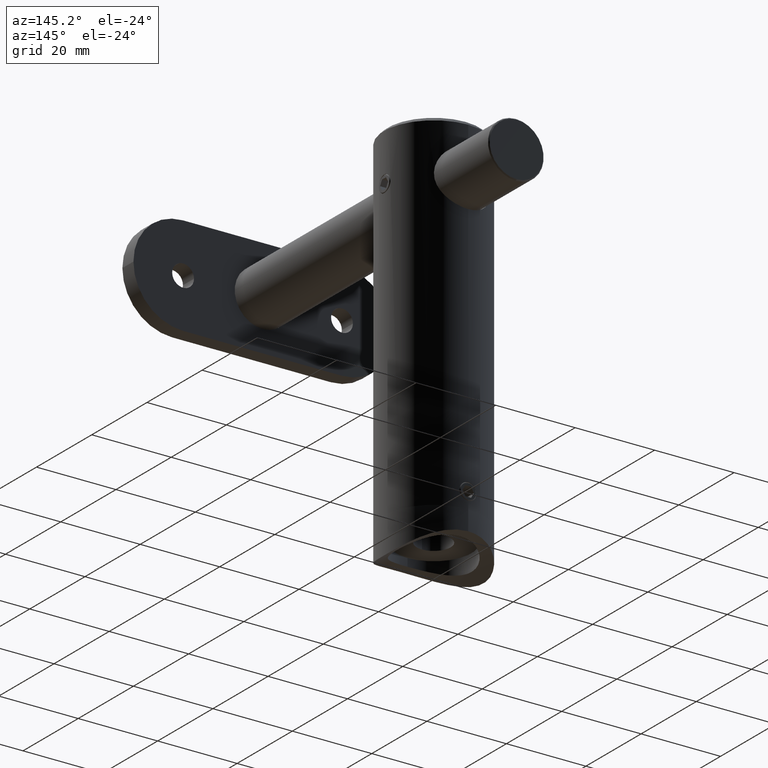
[diagram: clean part render]
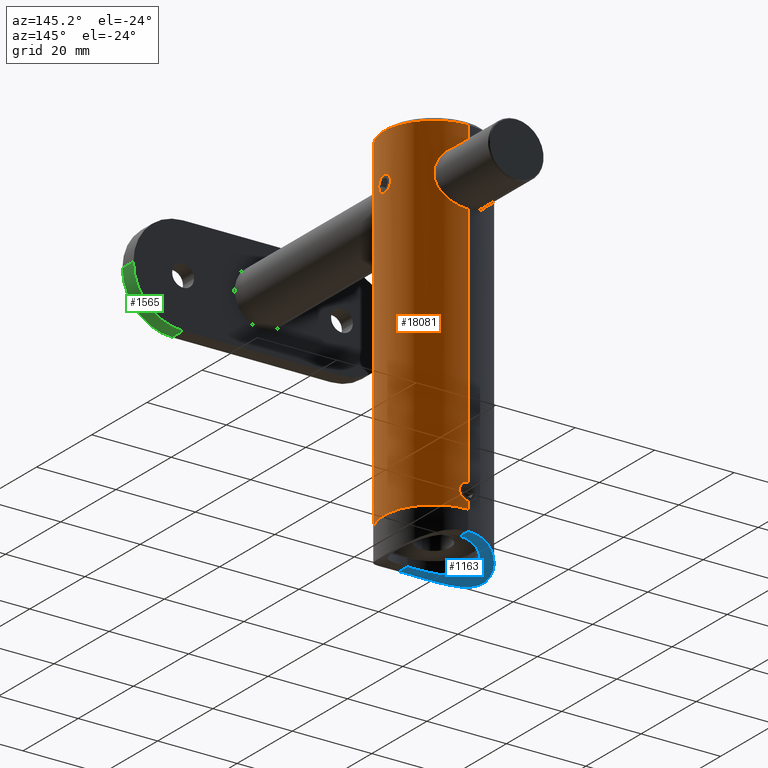
[diagram: same view with three faces highlighted in distinct colors, each labeled with its STEP entity id]
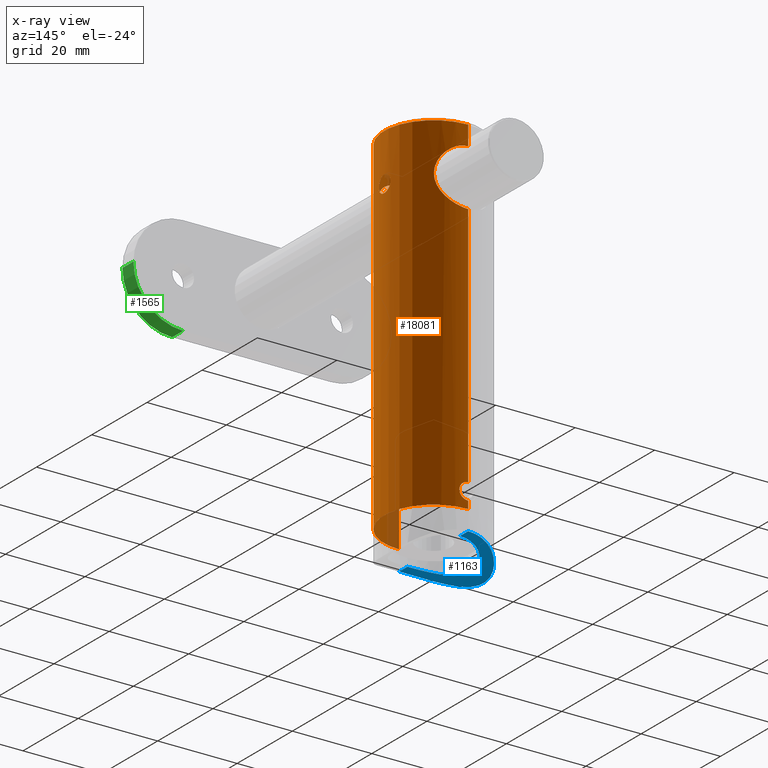
[diagram: x-ray of the same camera — body ghosted, the three highlighted faces saturated]
A machine part, auxiliary view with three faces highlighted in distinct colors.
The next image is the same camera in x-ray (body ghosted, the three faces saturated) — at least one of them is partly hidden behind the body in this view.
Their STEP definitions:

[orange] entity #18081 — the highlighted cylindrical surface (partial cylindrical patch) has radius 12.5 mm, axis along (0, 0, -1).
#29 = CARTESIAN_POINT ( 'NONE',  ( 6.139503581357959483, -10.88909560909869789, 78.57343385222416998 ) ) ;
#96 = VERTEX_POINT ( 'NONE', #14581 ) ;
#168 = CARTESIAN_POINT ( 'NONE',  ( 0.000000000000000000, 12.49999999999999467, 87.00000000000000000 ) ) ;
#338 = VERTEX_POINT ( 'NONE', #168 ) ;
#429 = CARTESIAN_POINT ( 'NONE',  ( 12.40001885819545357, -1.580836478937788447, 76.38913205608098167 ) ) ;
#484 = CARTESIAN_POINT ( 'NONE',  ( 0.9553685758214884860, -12.46569958972208880, 82.03946455910856628 ) ) ;
#496 = CARTESIAN_POINT ( 'NONE',  ( 12.48874150837816721, -0.5474908082749004867, 72.96791234692787498 ) ) ;
#502 = CARTESIAN_POINT ( 'NONE',  ( 1.479114197289397135E-28, 12.49999999999999645, 67.90000000000000568 ) ) ;
#620 = CARTESIAN_POINT ( 'NONE',  ( 6.863499158220037977, 10.44773442666879859, 76.87726417523570888 ) ) ;
#673 = EDGE_CURVE ( 'NONE', #7620, #16041, #17970, .T. ) ;
#680 = CARTESIAN_POINT ( 'NONE',  ( 3.592029824636716384, 11.97955674781279534, 81.14166018535317448 ) ) ;
#752 = CARTESIAN_POINT ( 'NONE',  ( 6.148078400945676592, 10.88734605281069179, 78.58038588945871084 ) ) ;
#797 = CARTESIAN_POINT ( 'NONE',  ( 0.1371844661457304326, 12.50000000000000178, 1.900000000000005684 ) ) ;
#802 = DIRECTION ( 'NONE',  ( -0.000000000000000000, 1.098045870766271941E-16, -1.000000000000000000 ) ) ;
#857 = CARTESIAN_POINT ( 'NONE',  ( 2.086330489974699276, 12.32468933921310850, 3.724121591978968304 ) ) ;
#880 = VECTOR ( 'NONE', #11729, 1000.000000000000000 ) ;
#991 = CARTESIAN_POINT ( 'NONE',  ( 1.992840048957692511, 12.34023651949286027, 3.323561581767618289 ) ) ;
#1012 = CARTESIAN_POINT ( 'NONE',  ( 12.34023651949286204, 1.992840048957679633, 75.67643841823236528 ) ) ;
#1048 = ORIENTED_EDGE ( 'NONE', *, *, #6955, .T. ) ;
#1201 = CARTESIAN_POINT ( 'NONE',  ( 5.765905370694647480, -11.09166530797233463, 70.85077256676534319 ) ) ;
#1268 = CARTESIAN_POINT ( 'NONE',  ( 1.874312031601152340, -12.36740688548128020, 68.13568800573899864 ) ) ;
#1474 = CARTESIAN_POINT ( 'NONE',  ( 2.549971958430633290, -12.23912789366318066, 81.63039500168848406 ) ) ;
#1804 = CARTESIAN_POINT ( 'NONE',  ( 12.46598422166855080, -0.9302022205380996445, 76.88770713018109859 ) ) ;
#1924 = ORIENTED_EDGE ( 'NONE', *, *, #673, .F. ) ;
#2002 = CARTESIAN_POINT ( 'NONE',  ( 5.339918604441929340, 11.30314907400740232, 79.68477827955356929 ) ) ;
#2058 = CARTESIAN_POINT ( 'NONE',  ( 1.641484044854722990, 12.39391654726003900, 68.08836762162168554 ) ) ;
#2119 = VECTOR ( 'NONE', #11003, 1000.000000000000000 ) ;
#2123 = CARTESIAN_POINT ( 'NONE',  ( 7.100136108486190700, 10.28776298659891708, 74.52130825598263186 ) ) ;
#2192 = CARTESIAN_POINT ( 'NONE',  ( 4.346314444032335800, 11.72684879340800812, 69.36723664936097578 ) ) ;
#2246 = CARTESIAN_POINT ( 'NONE',  ( 0.000000000000000000, -6.829089316830601455E-15, 87.00000000000000000 ) ) ;
#2248 = CARTESIAN_POINT ( 'NONE',  ( 6.454712516760546137, 10.70503448327140994, 72.03349485711549960 ) ) ;
#2286 = CARTESIAN_POINT ( 'NONE',  ( 0.2765420468446744273, 12.49766874747620449, 1.913752199355624128 ) ) ;
#2309 = CARTESIAN_POINT ( 'NONE',  ( 12.48229535687992886, 0.6771302859603445246, 76.99258700857591009 ) ) ;
#2384 = CARTESIAN_POINT ( 'NONE',  ( 12.48225234873649114, 0.6779383900031811239, 73.00767976529198222 ) ) ;
#2436 = ORIENTED_EDGE ( 'NONE', *, *, #15417, .F. ) ;
#2505 = CARTESIAN_POINT ( 'NONE',  ( 12.50000000000000355, 0.1390172217368248475, 72.90000000000000568 ) ) ;
#2695 = CARTESIAN_POINT ( 'NONE',  ( 7.039363743819930797, -10.32948239257339651, 74.04422229401671984 ) ) ;
#2792 = CARTESIAN_POINT ( 'NONE',  ( 0.000000000000000000, 12.50000000000000000, 1.372557338457839692E-15 ) ) ;
#2960 = CARTESIAN_POINT ( 'NONE',  ( 4.868944799639090881, -11.51408151635098776, 80.17252493070223807 ) ) ;
#3027 = ORIENTED_EDGE ( 'NONE', *, *, #14289, .F. ) ;
#3166 = CARTESIAN_POINT ( 'NONE',  ( 12.32472383621019851, -2.086126021674024056, 75.27716492244429958 ) ) ;
#3169 = CARTESIAN_POINT ( 'NONE',  ( 0.000000000000000000, 2.723909758835963716E-15, 0.000000000000000000 ) ) ;
#3212 = DIRECTION ( 'NONE',  ( 0.000000000000000000, 1.000000000000000000, 0.000000000000000000 ) ) ;
#3288 = CARTESIAN_POINT ( 'NONE',  ( 12.50000000000000178, -4.742557830427097865E-15, 72.90000000000000568 ) ) ;
#3301 = EDGE_CURVE ( 'NONE', #3643, #16957, #12492, .T. ) ;
#3360 = CARTESIAN_POINT ( 'NONE',  ( 12.38825472392713323, -1.669446844424482990, 76.28128412325601460 ) ) ;
#3404 = EDGE_LOOP ( 'NONE', ( #1048, #8566, #18418, #6139, #3027, #1924, #2436, #8655, #6202, #10585 ) ) ;
#3421 = CARTESIAN_POINT ( 'NONE',  ( 12.35697594623955098, -1.886269248244670571, 75.93326108111170925 ) ) ;
#3489 = CARTESIAN_POINT ( 'NONE',  ( 6.364631587517307842, 10.76036465851575663, 78.18015725607449440 ) ) ;
#3558 = CARTESIAN_POINT ( 'NONE',  ( 7.051980222211308380, 10.32144769786893868, 74.05050001367736456 ) ) ;
#3643 = VERTEX_POINT ( 'NONE', #15594 ) ;
#3657 = CARTESIAN_POINT ( 'NONE',  ( 0.5462078688293401374, 12.48878923632492821, 1.967621503411471906 ) ) ;
#3678 = CARTESIAN_POINT ( 'NONE',  ( 4.356324323330966308, 11.72326304938611230, 80.62539833997442429 ) ) ;
#3726 = B_SPLINE_CURVE_WITH_KNOTS ( 'NONE', 3,
 ( #9610, #10984, #6425, #18339, #5108, #13883, #680, #3678, #6672, #15428, #2002, #12409, #16852, #752, #3489, #9537, #620, #12525, #14009, #2123, #3558, #17042, #4926, #8163, #15483, #2248, #6617, #7986, #5048, #8098, #7916, #11105, #2192, #13826, #15296, #9481, #10924, #14076, #2058, #18275, #9425, #502 ),
 .UNSPECIFIED., .F., .F.,
 ( 4, 2, 2, 2, 2, 2, 2, 2, 2, 2, 2, 2, 2, 2, 2, 2, 2, 2, 2, 2, 4 ),
 ( 4.194532707431236113E-19, 0.001419307301426396073, 0.002838614602852791713, 0.004257921904279187569, 0.005677229205705584293, 0.006386882856418795232, 0.007096536507132008773, 0.008515843808558432385, 0.009935151109984857731, 0.01135445841141128134, 0.01277376571283770669, 0.01348341936355092197, 0.01419307301426413377, 0.01490272666497734731, 0.01561238031569055912, 0.01703168761711695151, 0.01845099491854334736, 0.01987030221996973975, 0.02057995587068293594, 0.02128960952139613561, 0.02270891682282252799 ),
 .UNSPECIFIED. ) ;
#3811 = CARTESIAN_POINT ( 'NONE',  ( 12.36503985059749766, 1.834949845525997825, 73.94276080644216620 ) ) ;
#3918 = CARTESIAN_POINT ( 'NONE',  ( 1.387157736859883972, 12.42318353256700902, 2.417308881639297802 ) ) ;
#4009 = CARTESIAN_POINT ( 'NONE',  ( 12.33211929933789897, 2.044525624529518470, 74.44799400489414154 ) ) ;
#4024 = VECTOR ( 'NONE', #16370, 1000.000000000000000 ) ;
#4073 = CARTESIAN_POINT ( 'NONE',  ( 6.146595381488634047, -10.88816703618160275, 71.41721095202191805 ) ) ;
#4193 = CARTESIAN_POINT ( 'NONE',  ( 4.707102817139631412, -11.58512768093195433, 69.66537265374721244 ) ) ;
#4238 = VERTEX_POINT ( 'NONE', #15934 ) ;
#4258 = CARTESIAN_POINT ( 'NONE',  ( 6.853982002503374638, -10.45369377733144844, 76.86763025503725544 ) ) ;
#4324 = CARTESIAN_POINT ( 'NONE',  ( 4.357488413051599174, -11.72285358696204582, 69.37543835206957965 ) ) ;
#4382 = CARTESIAN_POINT ( 'NONE',  ( 1.650620416519913647, -12.39271462522873435, 81.90947881661519148 ) ) ;
#4453 = CARTESIAN_POINT ( 'NONE',  ( 2.327268730588589740, -12.28355408712936381, 81.71186112651896849 ) ) ;
#4784 = CARTESIAN_POINT ( 'NONE',  ( 3.597349250370588170, -11.97780161950915279, 81.13814261268855432 ) ) ;
#4851 = CARTESIAN_POINT ( 'NONE',  ( 12.36656387944244351, -1.823189292361678371, 73.94888903341586683 ) ) ;
#4908 = CARTESIAN_POINT ( 'NONE',  ( 4.163804789402312245, -11.78780696279486406, 80.75540257205885553 ) ) ;
#4920 = CARTESIAN_POINT ( 'NONE',  ( 12.38807301078725409, -1.670798748957228019, 73.72043562086983570 ) ) ;
#4926 = CARTESIAN_POINT ( 'NONE',  ( 6.852873825890775983, 10.45442333798881940, 73.12823189057861839 ) ) ;
#4954 = LINE ( 'NONE', #8995, #4024 ) ;
#5016 = VERTEX_POINT ( 'NONE', #16694 ) ;
#5037 = AXIS2_PLACEMENT_3D ( 'NONE', #2246, #10919, #12405 ) ;
#5048 = CARTESIAN_POINT ( 'NONE',  ( 6.016811922509472943, 10.95760019053421708, 71.22370518382082594 ) ) ;
#5108 = CARTESIAN_POINT ( 'NONE',  ( 2.330508779459668389, 12.28868335539653955, 81.72272208563961726 ) ) ;
#5130 = CARTESIAN_POINT ( 'NONE',  ( 1.530808498934191719E-15, -12.50000000000000178, 24.80688495222045375 ) ) ;
#5223 = B_SPLINE_CURVE_WITH_KNOTS ( 'NONE', 3,
 ( #19193, #17669, #11611, #1268, #10134, #16133, #12983, #4324, #4193, #19059, #7066, #16192, #1201, #4073, #17416, #15938, #8554, #18932, #2695, #13115, #17600, #14571, #5706, #13174, #4258, #8749, #16059, #5765, #7849, #29, #14768, #7457, #13742, #2960, #18196, #12323, #4908, #4784, #10385, #1474, #4453, #5892, #4382, #15281, #484, #11878, #9336, #13367 ),
 .UNSPECIFIED., .F., .F.,
 ( 4, 2, 2, 2, 2, 2, 2, 2, 2, 2, 2, 2, 2, 2, 2, 2, 2, 2, 2, 2, 2, 2, 2, 4 ),
 ( 0.02270891682282252105, 0.02412525192292018159, 0.02554158702301784212, 0.02695792212311549918, 0.02837425722321315971, 0.02908242477326198824, 0.02979059232331081677, 0.03120692742340847731, 0.03262326252350613437, 0.03333143007355496290, 0.03403959762360379143, 0.03545593272370141380, 0.03616410027375022151, 0.03687226782379903617, 0.03758043537384784388, 0.03828860292389665854, 0.03970493802399423233, 0.04041310557404302617, 0.04112127312409182001, 0.04253760822418942156, 0.04324577577423822233, 0.04395394332428701617, 0.04466211087433581001, 0.04537027842438460384 ),
 .UNSPECIFIED. ) ;
#5241 = CARTESIAN_POINT ( 'NONE',  ( 12.46584558724483216, 0.9321576868460880183, 73.11319783095291314 ) ) ;
#5283 = CARTESIAN_POINT ( 'NONE',  ( 1.834949845526015144, 12.36503985059750121, 5.057239193557812484 ) ) ;
#5305 = CARTESIAN_POINT ( 'NONE',  ( 12.33366651879309472, 2.032587617967170246, 75.54540937349550234 ) ) ;
#5329 = CARTESIAN_POINT ( 'NONE',  ( 1.530808498934021719E-15, -12.50000000000000711, 67.90000000000000568 ) ) ;
#5351 = B_SPLINE_CURVE_WITH_KNOTS ( 'NONE', 3,
 ( #17098, #2505, #6994, #11495, #2384, #5241, #17294, #15620, #15685, #18793, #3811, #4009, #14198, #9943, #17157, #5305, #1012, #9994, #6806, #17350, #18735, #12925, #5505, #5371, #11243, #2309, #8302, #18861, #12733, #17228 ),
 .UNSPECIFIED., .F., .F.,
 ( 4, 2, 2, 2, 2, 2, 2, 2, 2, 2, 2, 2, 2, 2, 4 ),
 ( 5.694991699657585544E-19, 0.0004110766416146334587, 0.0008221532832292662669, 0.001233229924843899346, 0.001644306566458532100, 0.002466459849687796958, 0.003288613132917062466, 0.003699689774531715169, 0.004110766416146369173, 0.004521843057761021877, 0.004932919699375675447, 0.005343996340990329018, 0.005755072982604982589, 0.006166149624219635292, 0.006577226265834288862 ),
 .UNSPECIFIED. ) ;
#5371 = CARTESIAN_POINT ( 'NONE',  ( 12.45599735624381488, 1.054112223713804752, 76.82141008166449581 ) ) ;
#5416 = EDGE_CURVE ( 'NONE', #338, #6898, #4954, .T. ) ;
#5422 = CARTESIAN_POINT ( 'NONE',  ( -9.798441303750187635E-23, 12.50000000000000355, 1.900000000000005684 ) ) ;
#5505 = CARTESIAN_POINT ( 'NONE',  ( 12.43467607152728505, 1.281348397245117399, 76.66938118794041657 ) ) ;
#5706 = CARTESIAN_POINT ( 'NONE',  ( 7.052734923715451743, -10.32092856185195728, 75.94404489671642011 ) ) ;
#5765 = CARTESIAN_POINT ( 'NONE',  ( 6.457309689604065817, -10.70346527864367303, 77.96083301754553929 ) ) ;
#5892 = CARTESIAN_POINT ( 'NONE',  ( 1.878213508060257553, -12.36018587133493973, 81.85110017035160013 ) ) ;
#6139 = ORIENTED_EDGE ( 'NONE', *, *, #18887, .T. ) ;
#6202 = ORIENTED_EDGE ( 'NONE', *, *, #12658, .F. ) ;
#6221 = CARTESIAN_POINT ( 'NONE',  ( 12.34024839959371711, -1.992762697854680631, 74.32340279117751436 ) ) ;
#6417 = CARTESIAN_POINT ( 'NONE',  ( 12.45612933409647027, -1.052645575539829403, 76.82233367382804090 ) ) ;
#6425 = CARTESIAN_POINT ( 'NONE',  ( 0.9512168273055813250, 12.47240342699862836, 82.05172804908777096 ) ) ;
#6489 = FACE_BOUND ( 'NONE', #11413, .T. ) ;
#6498 = VECTOR ( 'NONE', #13344, 1000.000000000000000 ) ;
#6534 = AXIS2_PLACEMENT_3D ( 'NONE', #3169, #14986, #12034 ) ;
#6613 = CARTESIAN_POINT ( 'NONE',  ( 1.310074275435993587E-16, 12.49999999999999467, 82.09999999999999432 ) ) ;
#6617 = CARTESIAN_POINT ( 'NONE',  ( 6.355184909898127010, 10.76464359171547613, 71.82596901323130112 ) ) ;
#6650 = CARTESIAN_POINT ( 'NONE',  ( 2.099895493303238769, 12.32235525086057137, 4.275280821264919595 ) ) ;
#6672 = CARTESIAN_POINT ( 'NONE',  ( 4.708029709747258096, 11.58475042720363923, 80.33381269667307834 ) ) ;
#6806 = CARTESIAN_POINT ( 'NONE',  ( 12.36678065982762575, 1.821708534087441045, 76.05359325661177650 ) ) ;
#6857 = CARTESIAN_POINT ( 'NONE',  ( 1.052690134217554307, 12.45612162279729951, 5.822267772036405553 ) ) ;
#6898 = VERTEX_POINT ( 'NONE', #6613 ) ;
#6913 = CARTESIAN_POINT ( 'NONE',  ( 0.5444173614143056339, 12.48886249823464745, 6.032826302615787561 ) ) ;
#6955 = EDGE_CURVE ( 'NONE', #338, #4238, #11212, .T. ) ;
#6994 = CARTESIAN_POINT ( 'NONE',  ( 12.49768326621186532, 0.2756623671610598514, 72.91366750028979027 ) ) ;
#7066 = CARTESIAN_POINT ( 'NONE',  ( 5.339170464550233142, -11.30350596078847580, 70.31435362947013346 ) ) ;
#7457 = CARTESIAN_POINT ( 'NONE',  ( 5.637531711305975080, -11.16027666235575388, 79.34016184945231487 ) ) ;
#7620 = VERTEX_POINT ( 'NONE', #11523 ) ;
#7731 = CARTESIAN_POINT ( 'NONE',  ( 12.35677335900393281, -1.887587319264240504, 74.06946194860161370 ) ) ;
#7849 = CARTESIAN_POINT ( 'NONE',  ( 6.357972462635661515, -10.76299649604915842, 78.16845701976458827 ) ) ;
#7909 = CARTESIAN_POINT ( 'NONE',  ( 12.43448438498407427, -1.292831960822527160, 73.32272558053072942 ) ) ;
#7916 = CARTESIAN_POINT ( 'NONE',  ( 5.345048310374299838, 11.30501070537478547, 70.30460859623607917 ) ) ;
#7938 = ORIENTED_EDGE ( 'NONE', *, *, #3301, .F. ) ;
#7986 = CARTESIAN_POINT ( 'NONE',  ( 6.136548808116673470, 10.89076193942644899, 71.42150636865642355 ) ) ;
#8098 = CARTESIAN_POINT ( 'NONE',  ( 5.633085906007541332, 11.16254692090159928, 70.65396086375710638 ) ) ;
#8163 = CARTESIAN_POINT ( 'NONE',  ( 6.713868405384194382, 10.54423150536102938, 72.67849907081439653 ) ) ;
#8302 = CARTESIAN_POINT ( 'NONE',  ( 12.48878923632492288, 0.5462078688293278139, 77.03237849658850678 ) ) ;
#8339 = CARTESIAN_POINT ( 'NONE',  ( 1.281348397245135606, 12.43467607152728860, 2.330618812059590095 ) ) ;
#8409 = CARTESIAN_POINT ( 'NONE',  ( 1.280796030087371973, 12.43473698676050887, 5.669843669627169014 ) ) ;
#8554 = CARTESIAN_POINT ( 'NONE',  ( 6.862816372559793265, -10.44818337300497468, 73.12045813888653356 ) ) ;
#8566 = ORIENTED_EDGE ( 'NONE', *, *, #15723, .T. ) ;
#8655 = ORIENTED_EDGE ( 'NONE', *, *, #10678, .F. ) ;
#8749 = CARTESIAN_POINT ( 'NONE',  ( 6.715641276056541820, -10.54309940824727754, 77.31630617827099172 ) ) ;
#8802 = LINE ( 'NONE', #19103, #880 ) ;
#8995 = CARTESIAN_POINT ( 'NONE',  ( 0.000000000000000000, 12.50000000000000178, 24.80688495222045375 ) ) ;
#9084 = CARTESIAN_POINT ( 'NONE',  ( 0.000000000000000000, 0.000000000000000000, 24.80688495222045375 ) ) ;
#9167 = CARTESIAN_POINT ( 'NONE',  ( 12.32235175367555691, -2.099916014006711684, 75.14000245874221662 ) ) ;
#9275 = CARTESIAN_POINT ( 'NONE',  ( 12.50000000000000178, -8.927675263775713921E-15, 77.09999999999999432 ) ) ;
#9336 = CARTESIAN_POINT ( 'NONE',  ( 0.2397798003476037387, -12.50000000000000888, 82.09999999999998010 ) ) ;
#9348 = CARTESIAN_POINT ( 'NONE',  ( 12.36678782163336621, -1.821665953450996689, 76.05369584079291201 ) ) ;
#9425 = CARTESIAN_POINT ( 'NONE',  ( 0.4809610958689473081, 12.50000000000000000, 67.90000000000000568 ) ) ;
#9481 = CARTESIAN_POINT ( 'NONE',  ( 2.542285523396216274, 12.24072011514204128, 68.36667086906037127 ) ) ;
#9537 = CARTESIAN_POINT ( 'NONE',  ( 6.722015453373491489, 10.54080125387373634, 77.33161824979872279 ) ) ;
#9610 = CARTESIAN_POINT ( 'NONE',  ( 1.310074275435993587E-16, 12.49999999999999467, 82.09999999999999432 ) ) ;
#9661 = CARTESIAN_POINT ( 'NONE',  ( 0.000000000000000000, 12.50000000000000178, 24.80688495222045375 ) ) ;
#9713 = ORIENTED_EDGE ( 'NONE', *, *, #12686, .F. ) ;
#9715 = CARTESIAN_POINT ( 'NONE',  ( 1.887385030941209907, 12.35680486868406369, 3.069001536322709889 ) ) ;
#9784 = CARTESIAN_POINT ( 'NONE',  ( 0.2756623671610645698, 12.49768326621186709, 6.086332499710207067 ) ) ;
#9856 = CARTESIAN_POINT ( 'NONE',  ( 2.100052025693301072, 12.32232857426644124, 3.863557181503245452 ) ) ;
#9943 = CARTESIAN_POINT ( 'NONE',  ( 12.32232857426643946, 2.100052025693282420, 75.13644281849676076 ) ) ;
#9994 = CARTESIAN_POINT ( 'NONE',  ( 12.35680486868406192, 1.887385030941196362, 75.93099846367726968 ) ) ;
#10134 = CARTESIAN_POINT ( 'NONE',  ( 2.330455522349840436, -12.28868556496929365, 68.27727600612421099 ) ) ;
#10305 = CARTESIAN_POINT ( 'NONE',  ( 1.530808498934191324E-15, -12.49999999999999289, -1.372557338457839692E-15 ) ) ;
#10385 = CARTESIAN_POINT ( 'NONE',  ( 3.195008394635590054, -12.09282248704223406, 81.35766473062263060 ) ) ;
#10585 = ORIENTED_EDGE ( 'NONE', *, *, #5416, .F. ) ;
#10590 = DIRECTION ( 'NONE',  ( -0.000000000000000000, 1.098045870766271941E-16, -1.000000000000000000 ) ) ;
#10678 = EDGE_CURVE ( 'NONE', #18437, #96, #17848, .T. ) ;
#10726 = CARTESIAN_POINT ( 'NONE',  ( 12.45762628977003850, -1.059040836926603113, 73.16609221518450568 ) ) ;
#10797 = CARTESIAN_POINT ( 'NONE',  ( 12.43465773738692803, -1.281603546142748185, 76.66926782661904838 ) ) ;
#10916 = CARTESIAN_POINT ( 'NONE',  ( 12.50000000000000533, -0.1389824923851714633, 72.90000000000000568 ) ) ;
#10919 = DIRECTION ( 'NONE',  ( -0.000000000000000000, 1.098045870766268366E-16, -1.000000000000000000 ) ) ;
#10924 = CARTESIAN_POINT ( 'NONE',  ( 2.319323625872139250, 12.28506725716602510, 68.28537096905358794 ) ) ;
#10984 = CARTESIAN_POINT ( 'NONE',  ( 0.4805659640073335348, 12.49999999999999822, 82.09999999999998010 ) ) ;
#11003 = DIRECTION ( 'NONE',  ( -0.000000000000000000, 1.098045870766271941E-16, -1.000000000000000000 ) ) ;
#11105 = CARTESIAN_POINT ( 'NONE',  ( 4.703273353215213781, 11.58671775153815275, 69.66188594729271699 ) ) ;
#11145 = CARTESIAN_POINT ( 'NONE',  ( 1.821708534087455478, 12.36678065982762753, 2.946406743388207961 ) ) ;
#11212 = CIRCLE ( 'NONE', #5037, 12.50000000000000178 ) ;
#11243 = CARTESIAN_POINT ( 'NONE',  ( 12.46591754872634539, 0.9311833701841214506, 76.88727473940672041 ) ) ;
#11287 = CARTESIAN_POINT ( 'NONE',  ( 1.054112223713821850, 12.45599735624381665, 2.178589918335490427 ) ) ;
#11345 = CARTESIAN_POINT ( 'NONE',  ( 1.669773426702777730, 12.38820982123450243, 2.719165335797718797 ) ) ;
#11406 = CARTESIAN_POINT ( 'NONE',  ( 0.9311833701841346622, 12.46591754872634716, 2.112725260593256937 ) ) ;
#11413 = EDGE_LOOP ( 'NONE', ( #9713, #7938 ) ) ;
#11495 = CARTESIAN_POINT ( 'NONE',  ( 12.48886249823464389, 0.5444173614142989726, 72.96717369738421155 ) ) ;
#11523 = CARTESIAN_POINT ( 'NONE',  ( -9.798441303750187635E-23, 12.50000000000000355, 1.900000000000005684 ) ) ;
#11611 = CARTESIAN_POINT ( 'NONE',  ( 0.9511822130778535556, -12.47241159761731844, 67.94825715557603019 ) ) ;
#11729 = DIRECTION ( 'NONE',  ( -0.000000000000000000, 1.098045870766271941E-16, -1.000000000000000000 ) ) ;
#11878 = CARTESIAN_POINT ( 'NONE',  ( 0.4811991486314973754, -12.49299174562366765, 82.08768211575332430 ) ) ;
#12034 = DIRECTION ( 'NONE',  ( 0.000000000000000000, 1.000000000000000000, 1.098045870766272064E-16 ) ) ;
#12157 = CARTESIAN_POINT ( 'NONE',  ( 12.49041604070637135, -0.5510555997337337475, 77.04479711651897844 ) ) ;
#12180 = VERTEX_POINT ( 'NONE', #5329 ) ;
#12219 = CARTESIAN_POINT ( 'NONE',  ( 12.48211517639016854, -0.6802983101495032603, 73.00854562603635145 ) ) ;
#12272 = CARTESIAN_POINT ( 'NONE',  ( 12.42317581721323272, -1.387160506701222706, 76.58256676668652574 ) ) ;
#12323 = CARTESIAN_POINT ( 'NONE',  ( 4.346392963122590380, -11.72154789661121477, 80.61883026206071179 ) ) ;
#12405 = DIRECTION ( 'NONE',  ( 0.000000000000000000, -1.000000000000000000, 0.000000000000000000 ) ) ;
#12409 = CARTESIAN_POINT ( 'NONE',  ( 5.629205280336356587, 11.16189758074910543, 79.33288889108355590 ) ) ;
#12492 = B_SPLINE_CURVE_WITH_KNOTS ( 'NONE', 3,
 ( #9275, #15170, #12157, #1804, #6417, #10797, #12272, #429, #3360, #9348, #3421, #13753, #15099, #3166, #9167, #13822, #15039, #16530, #6221, #7731, #4851, #4920, #18065, #7909, #10726, #12219, #496, #18270, #10916, #3288 ),
 .UNSPECIFIED., .F., .F.,
 ( 4, 2, 2, 2, 2, 2, 2, 2, 2, 2, 2, 2, 2, 2, 4 ),
 ( 0.006577226265834288862, 0.007399174158320342629, 0.007810148104563369512, 0.008221122050806396395, 0.008632095997049421543, 0.009043069943292448426, 0.009454043889535475309, 0.009865017835778502192, 0.01027599178202152908, 0.01068696572826455596, 0.01109793967450758284, 0.01150891362075060972, 0.01233086151323666349, 0.01274183545947968343, 0.01315280940572270164 ),
 .UNSPECIFIED. ) ;
#12525 = CARTESIAN_POINT ( 'NONE',  ( 7.051303418075907992, 10.32191336193627151, 75.95439068768588697 ) ) ;
#12644 = CARTESIAN_POINT ( 'NONE',  ( 1.582696428115959231, 12.39978901785039511, 2.612848321380438321 ) ) ;
#12658 = EDGE_CURVE ( 'NONE', #6898, #18437, #3726, .T. ) ;
#12686 = EDGE_CURVE ( 'NONE', #16957, #3643, #5351, .T. ) ;
#12733 = CARTESIAN_POINT ( 'NONE',  ( 12.49999999999999645, 0.1371844661457215231, 77.09999999999996589 ) ) ;
#12925 = CARTESIAN_POINT ( 'NONE',  ( 12.42318353256701258, 1.387157736859872204, 76.58269111836068532 ) ) ;
#12947 = EDGE_CURVE ( 'NONE', #12180, #5016, #5223, .T. ) ;
#12983 = CARTESIAN_POINT ( 'NONE',  ( 3.591928364928691053, -11.97960984808972817, 68.85822097251374885 ) ) ;
#13115 = CARTESIAN_POINT ( 'NONE',  ( 7.087426699821463671, -10.29656404782430634, 74.51571112368854699 ) ) ;
#13145 = AXIS2_PLACEMENT_3D ( 'NONE', #9084, #10590, #3212 ) ;
#13174 = CARTESIAN_POINT ( 'NONE',  ( 6.912668111617618294, -10.41480574227799494, 76.63725143042471188 ) ) ;
#13344 = DIRECTION ( 'NONE',  ( -0.000000000000000000, 1.098045870766271941E-16, -1.000000000000000000 ) ) ;
#13367 = CARTESIAN_POINT ( 'NONE',  ( 1.290313625304569330E-16, -12.50000000000000888, 82.09999999999999432 ) ) ;
#13524 = LINE ( 'NONE', #5130, #2119 ) ;
#13576 = VERTEX_POINT ( 'NONE', #10305 ) ;
#13742 = CARTESIAN_POINT ( 'NONE',  ( 5.350137245759823301, -11.30260226496381648, 79.68962492468294556 ) ) ;
#13753 = CARTESIAN_POINT ( 'NONE',  ( 12.34036526571288661, -1.992047017919829077, 75.67877581040282564 ) ) ;
#13822 = CARTESIAN_POINT ( 'NONE',  ( 12.32232325748718438, -2.100083223394554999, 74.86252851512971063 ) ) ;
#13826 = CARTESIAN_POINT ( 'NONE',  ( 3.589032839019617338, 11.98032867455219908, 68.85692947369598471 ) ) ;
#13883 = CARTESIAN_POINT ( 'NONE',  ( 3.187496164584713298, 12.09474588327907973, 81.36129952231796381 ) ) ;
#14009 = CARTESIAN_POINT ( 'NONE',  ( 7.099863319915301396, 10.28795124725935572, 75.48272081303905168 ) ) ;
#14054 = CARTESIAN_POINT ( 'NONE',  ( 0.6779383900031874521, 12.48225234873649292, 5.992320234708012450 ) ) ;
#14076 = CARTESIAN_POINT ( 'NONE',  ( 1.869096526884920673, 12.36157828789706592, 68.14638903365943179 ) ) ;
#14178 = CARTESIAN_POINT ( 'NONE',  ( 6.970107993329720685E-17, 12.50000000000000355, 6.099999999999998757 ) ) ;
#14198 = CARTESIAN_POINT ( 'NONE',  ( 12.32235525086057493, 2.099895493303221894, 74.72471917873511416 ) ) ;
#14289 = EDGE_CURVE ( 'NONE', #16041, #13576, #14670, .T. ) ;
#14327 = CARTESIAN_POINT ( 'NONE',  ( 12.50000000000000178, -4.742557830427097865E-15, 72.90000000000000568 ) ) ;
#14571 = CARTESIAN_POINT ( 'NONE',  ( 7.100327846217662220, -10.28763066194223441, 75.47389198161975798 ) ) ;
#14581 = CARTESIAN_POINT ( 'NONE',  ( 6.970107993329720685E-17, 12.50000000000000355, 6.099999999999998757 ) ) ;
#14593 = CYLINDRICAL_SURFACE ( 'NONE', #13145, 12.50000000000000178 ) ;
#14670 = CIRCLE ( 'NONE', #6534, 12.49999999999999645 ) ;
#14768 = CARTESIAN_POINT ( 'NONE',  ( 6.019886174600847184, -10.95590503741819610, 78.77136084374127734 ) ) ;
#14986 = DIRECTION ( 'NONE',  ( -0.000000000000000000, 1.098045870766271941E-16, -1.000000000000000000 ) ) ;
#15039 = CARTESIAN_POINT ( 'NONE',  ( 12.32465138950227512, -2.086551808546025288, 74.72598678402806627 ) ) ;
#15099 = CARTESIAN_POINT ( 'NONE',  ( 12.33368337160504602, -2.032484663200843755, 75.54566314369984070 ) ) ;
#15170 = CARTESIAN_POINT ( 'NONE',  ( 12.50000000000000178, -0.2743003893079722366, 77.10000000000000853 ) ) ;
#15281 = CARTESIAN_POINT ( 'NONE',  ( 1.189197617727922207, -12.44547036346078528, 82.00366006475731240 ) ) ;
#15296 = CARTESIAN_POINT ( 'NONE',  ( 3.186329035902468743, 12.09508519001899174, 68.63805128578243853 ) ) ;
#15417 = EDGE_CURVE ( 'NONE', #96, #7620, #17781, .T. ) ;
#15428 = CARTESIAN_POINT ( 'NONE',  ( 5.187679897919521110, 11.37402628047061448, 79.85275722496861306 ) ) ;
#15483 = CARTESIAN_POINT ( 'NONE',  ( 6.634052515645166181, 10.59483006856256182, 72.45976110248518864 ) ) ;
#15594 = CARTESIAN_POINT ( 'NONE',  ( 12.50000000000000178, -8.927675263775713921E-15, 77.09999999999999432 ) ) ;
#15620 = CARTESIAN_POINT ( 'NONE',  ( 12.43473698676051242, 1.280796030087359538, 73.33015633037285852 ) ) ;
#15685 = CARTESIAN_POINT ( 'NONE',  ( 12.42301355294200249, 1.388600539506594567, 73.41870817831934914 ) ) ;
#15723 = EDGE_CURVE ( 'NONE', #4238, #5016, #13524, .T. ) ;
#15729 = CARTESIAN_POINT ( 'NONE',  ( 1.479114197289397135E-28, 12.49999999999999645, 67.90000000000000568 ) ) ;
#15934 = CARTESIAN_POINT ( 'NONE',  ( 1.530808498934192507E-15, -12.50000000000000888, 87.00000000000000000 ) ) ;
#15938 = CARTESIAN_POINT ( 'NONE',  ( 6.721338987096790341, -10.54124068422390081, 72.66633231102332502 ) ) ;
#16041 = VERTEX_POINT ( 'NONE', #2792 ) ;
#16059 = CARTESIAN_POINT ( 'NONE',  ( 6.636142668883756812, -10.59351820108908981, 77.53475660832806682 ) ) ;
#16117 = VECTOR ( 'NONE', #802, 1000.000000000000000 ) ;
#16133 = CARTESIAN_POINT ( 'NONE',  ( 3.187016512190910422, -12.09486426576826013, 68.63847765149670010 ) ) ;
#16192 = CARTESIAN_POINT ( 'NONE',  ( 5.628902018887845138, -11.16205403663978579, 70.66670042335572077 ) ) ;
#16229 = CARTESIAN_POINT ( 'NONE',  ( 0.000000000000000000, 12.50000000000000178, 24.80688495222045375 ) ) ;
#16370 = DIRECTION ( 'NONE',  ( -0.000000000000000000, 1.098045870766271941E-16, -1.000000000000000000 ) ) ;
#16530 = CARTESIAN_POINT ( 'NONE',  ( 12.33355821179406497, -2.033241785620694575, 74.45712843739981679 ) ) ;
#16694 = CARTESIAN_POINT ( 'NONE',  ( 1.290313625304569330E-16, -12.50000000000000888, 82.09999999999999432 ) ) ;
#16852 = CARTESIAN_POINT ( 'NONE',  ( 5.766588826831745784, 11.09131400361184028, 79.14830821994482335 ) ) ;
#16957 = VERTEX_POINT ( 'NONE', #14327 ) ;
#17042 = CARTESIAN_POINT ( 'NONE',  ( 6.911509236011332824, 10.41557569167954611, 73.35788736678887290 ) ) ;
#17098 = CARTESIAN_POINT ( 'NONE',  ( 12.50000000000000178, -4.742557830427097865E-15, 72.90000000000000568 ) ) ;
#17157 = CARTESIAN_POINT ( 'NONE',  ( 12.32468933921311027, 2.086330489974682401, 75.27587840802104324 ) ) ;
#17203 = CARTESIAN_POINT ( 'NONE',  ( 2.044525624529536234, 12.33211929933789897, 4.552005995105875336 ) ) ;
#17228 = CARTESIAN_POINT ( 'NONE',  ( 12.50000000000000178, -8.927675263775713921E-15, 77.09999999999999432 ) ) ;
#17273 = CARTESIAN_POINT ( 'NONE',  ( 0.9321576868460960119, 12.46584558724483216, 5.886802169047096633 ) ) ;
#17294 = CARTESIAN_POINT ( 'NONE',  ( 12.45612162279729951, 1.052690134217543205, 73.17773222796360244 ) ) ;
#17350 = CARTESIAN_POINT ( 'NONE',  ( 12.38820982123449710, 1.669773426702765073, 76.28083466420225989 ) ) ;
#17416 = CARTESIAN_POINT ( 'NONE',  ( 6.363243337331817351, -10.76119357562657264, 71.81699247692637300 ) ) ;
#17600 = CARTESIAN_POINT ( 'NONE',  ( 7.099833554373472744, -10.28797178943788104, 74.75572396004345421 ) ) ;
#17669 = CARTESIAN_POINT ( 'NONE',  ( 0.4799539051028673953, -12.50000000000000711, 67.90000000000001990 ) ) ;
#17781 = B_SPLINE_CURVE_WITH_KNOTS ( 'NONE', 3,
 ( #14178, #18512, #9784, #6913, #14054, #17273, #6857, #8409, #18659, #18581, #5283, #17203, #6650, #9856, #857, #18773, #991, #9715, #11145, #11345, #12644, #3918, #8339, #11287, #11406, #18719, #3657, #2286, #797, #5422 ),
 .UNSPECIFIED., .F., .F.,
 ( 4, 2, 2, 2, 2, 2, 2, 2, 2, 2, 2, 2, 2, 2, 4 ),
 ( 2.806614994676047085E-20, 0.0004110766416146458728, 0.0008221532832292916372, 0.001233229924843937944, 0.001644306566458583925, 0.002466459849687873719, 0.003288613132917163513, 0.003699689774531809711, 0.004110766416146454175, 0.004521843057761099072, 0.004932919699375744836, 0.005343996340990389733, 0.005755072982605034630, 0.006166149624219679527, 0.006577226265834324424 ),
 .UNSPECIFIED. ) ;
#17848 = LINE ( 'NONE', #16229, #6498 ) ;
#17970 = LINE ( 'NONE', #9661, #16117 ) ;
#18059 = FACE_OUTER_BOUND ( 'NONE', #3404, .T. ) ;
#18065 = CARTESIAN_POINT ( 'NONE',  ( 12.39980942031196776, -1.582460249035305688, 73.61274171492630103 ) ) ;
#18081 = ADVANCED_FACE ( 'NONE', ( #6489, #18059 ), #14593, .T. ) ;
#18196 = CARTESIAN_POINT ( 'NONE',  ( 4.699254457469034030, -11.58459427111669449, 80.32723125532280051 ) ) ;
#18270 = CARTESIAN_POINT ( 'NONE',  ( 12.49768328457756361, -0.2762664775608930090, 72.91366271943154231 ) ) ;
#18275 = CARTESIAN_POINT ( 'NONE',  ( 0.9511355239451539934, 12.47236506100287556, 67.94834280267892268 ) ) ;
#18339 = CARTESIAN_POINT ( 'NONE',  ( 1.874052461373487244, 12.36744064349517558, 81.86437246242219601 ) ) ;
#18418 = ORIENTED_EDGE ( 'NONE', *, *, #12947, .F. ) ;
#18437 = VERTEX_POINT ( 'NONE', #15729 ) ;
#18512 = CARTESIAN_POINT ( 'NONE',  ( 0.1390172217368305929, 12.50000000000000355, 6.099999999999996092 ) ) ;
#18581 = CARTESIAN_POINT ( 'NONE',  ( 1.678584206747425256, 12.38831158150507861, 5.291176283621599197 ) ) ;
#18659 = CARTESIAN_POINT ( 'NONE',  ( 1.388600539506599674, 12.42301355294200249, 5.581291821680668619 ) ) ;
#18719 = CARTESIAN_POINT ( 'NONE',  ( 0.6771302859603564039, 12.48229535687993241, 2.007412991424085025 ) ) ;
#18735 = CARTESIAN_POINT ( 'NONE',  ( 12.39978901785039334, 1.582696428115945908, 76.38715167861954569 ) ) ;
#18773 = CARTESIAN_POINT ( 'NONE',  ( 2.032587617967188898, 12.33366651879309295, 3.454590626504497219 ) ) ;
#18793 = CARTESIAN_POINT ( 'NONE',  ( 12.38831158150507861, 1.678584206747418373, 73.70882371637840436 ) ) ;
#18861 = CARTESIAN_POINT ( 'NONE',  ( 12.49766874747620093, 0.2765420468446641022, 77.08624780064435811 ) ) ;
#18887 = EDGE_CURVE ( 'NONE', #12180, #13576, #8802, .T. ) ;
#18932 = CARTESIAN_POINT ( 'NONE',  ( 7.003725121456045422, -10.35379304955139546, 73.81127548781324776 ) ) ;
#19059 = CARTESIAN_POINT ( 'NONE',  ( 5.186797260141184474, -11.37442896416549054, 70.14630031359378393 ) ) ;
#19103 = CARTESIAN_POINT ( 'NONE',  ( 1.530808498934191719E-15, -12.50000000000000178, 24.80688495222045375 ) ) ;
#19193 = CARTESIAN_POINT ( 'NONE',  ( 1.530808498934021719E-15, -12.50000000000000711, 67.90000000000000568 ) ) ;

[blue] entity #1163 — the highlighted cylindrical surface (partial cylindrical patch) has radius 21.2 mm, axis along (0, 1, 0).
#17 = CARTESIAN_POINT ( 'NONE',  ( -9.926636468171466277, 7.639131853456515131, -2.460587857928711042 ) ) ;
#90 = CARTESIAN_POINT ( 'NONE',  ( -10.80857782698150871, 6.291928922265645596, -2.960889035143795756 ) ) ;
#772 = CARTESIAN_POINT ( 'NONE',  ( -0.6275294939466145028, -9.500000000000001776, 8.597384414631142525E-16 ) ) ;
#888 = CARTESIAN_POINT ( 'NONE',  ( -7.545282423623953960, -5.804909621740315551, -1.384726415098398444 ) ) ;
#961 = CARTESIAN_POINT ( 'NONE',  ( -5.805942213954453202, 7.525670169832348932, -0.8090122025169094178 ) ) ;
#1029 = CARTESIAN_POINT ( 'NONE',  ( -9.421843170412577351, -1.256671943239963785, -2.208683526330691205 ) ) ;
#1041 = CARTESIAN_POINT ( 'NONE',  ( -8.569357823279590392, -9.109024265841890511, -1.806659297143438980 ) ) ;
#1056 = EDGE_CURVE ( 'NONE', #5175, #13983, #9453, .T. ) ;
#1163 = ADVANCED_FACE ( 'NONE', ( #15246 ), #4315, .F. ) ;
#1521 = CARTESIAN_POINT ( 'NONE',  ( -12.50092163456458394, 0.8325225752573188753, -4.077880983653366265 ) ) ;
#1907 = ORIENTED_EDGE ( 'NONE', *, *, #4212, .T. ) ;
#2333 = CARTESIAN_POINT ( 'NONE',  ( -7.144392992319526847, 6.269113372122063765, -1.239018852474774501 ) ) ;
#2404 = CARTESIAN_POINT ( 'NONE',  ( -2.484891172450712116, 9.174654780029433354, -0.1439469597393304989 ) ) ;
#2470 = CARTESIAN_POINT ( 'NONE',  ( -6.939045779169092043, 6.495616438853671681, -1.166491256657042230 ) ) ;
#2519 = CARTESIAN_POINT ( 'NONE',  ( -3.947781125793090595, -8.646421355206925341, -0.3687998517959273359 ) ) ;
#2635 = VERTEX_POINT ( 'NONE', #12540 ) ;
#2641 = CARTESIAN_POINT ( 'NONE',  ( -12.16283172011047320, -2.913318855141282526, -3.835786719495810626 ) ) ;
#3007 = CARTESIAN_POINT ( 'NONE',  ( -11.36768113948518710, 5.214514510065643371, -3.304441698743988631 ) ) ;
#3141 = CARTESIAN_POINT ( 'NONE',  ( -12.16984790407604500, 2.883996753870301966, -3.840709158031511805 ) ) ;
#3734 = EDGE_LOOP ( 'NONE', ( #16934, #8372, #9600, #1907 ) ) ;
#3764 = CARTESIAN_POINT ( 'NONE',  ( 1.163408702497735518E-15, -9.500000000000001776, 5.232710601427350400E-16 ) ) ;
#3832 = CARTESIAN_POINT ( 'NONE',  ( 1.770460806215789106E-16, 9.500000000000001776, 9.112057225737407952E-16 ) ) ;
#3894 = CARTESIAN_POINT ( 'NONE',  ( -8.526553804341489240, 4.234270384419533961, -1.788500992911558285 ) ) ;
#3907 = CARTESIAN_POINT ( 'NONE',  ( -5.615852831644746246, -11.19741679516262423, -0.7426697937745319056 ) ) ;
#3960 = CARTESIAN_POINT ( 'NONE',  ( -7.148975235186329158, -6.286250973352113469, -1.236519540645801163 ) ) ;
#4043 = CARTESIAN_POINT ( 'NONE',  ( -9.131153934576975217, -8.545773481795482240, -2.064755425040014636 ) ) ;
#4157 = CARTESIAN_POINT ( 'NONE',  ( -0.8474616539393305947, -12.50000000000000355, -0.000000000000000000 ) ) ;
#4212 = EDGE_CURVE ( 'NONE', #2635, #13983, #7876, .T. ) ;
#4315 = CYLINDRICAL_SURFACE ( 'NONE', #18916, 21.19999999999999929 ) ;
#4510 = CARTESIAN_POINT ( 'NONE',  ( -3.314268895872201970, 12.05973822206781776, -0.2568123239795907509 ) ) ;
#4768 = CARTESIAN_POINT ( 'NONE',  ( -0.8493063021244290356, 12.47821017736088223, -0.01286860730927284584 ) ) ;
#4808 = CARTESIAN_POINT ( 'NONE',  ( -11.81299108572395085, -4.107946293886024058, -3.595584469514719217 ) ) ;
#5175 = VERTEX_POINT ( 'NONE', #16890 ) ;
#5257 = CARTESIAN_POINT ( 'NONE',  ( -9.500231082921484216, -0.3076637705127349132, -2.247807265663634091 ) ) ;
#5266 = VECTOR ( 'NONE', #8623, 1000.000000000000000 ) ;
#5390 = CARTESIAN_POINT ( 'NONE',  ( -9.251550618719285524, 2.181098476497070227, -2.125054315301133645 ) ) ;
#5404 = CARTESIAN_POINT ( 'NONE',  ( -7.335528771759535438, -10.12938846727852571, -1.306364138595595970 ) ) ;
#5459 = CARTESIAN_POINT ( 'NONE',  ( -8.992179249281038622, -3.080281073122243640, -2.001277538550943369 ) ) ;
#5472 = CARTESIAN_POINT ( 'NONE',  ( -3.299544761782136071, -12.06386656912337862, -0.2544362983334328976 ) ) ;
#5531 = CARTESIAN_POINT ( 'NONE',  ( -9.398677270982499721, -8.250758313400194055, -2.195094919896831698 ) ) ;
#6687 = CARTESIAN_POINT ( 'NONE',  ( -2.181203834842527556, 9.251494329312301090, -0.1102612648994177463 ) ) ;
#6753 = CARTESIAN_POINT ( 'NONE',  ( -1.252164291796421969, -9.438442895683170519, -0.02781063336081027182 ) ) ;
#6786 = CARTESIAN_POINT ( 'NONE',  ( 0.000000000000000000, 12.50000000000000000, -5.261240927112904875E-16 ) ) ;
#6946 = CARTESIAN_POINT ( 'NONE',  ( -3.086437162363791398, 8.990154621274323077, -0.2236809850733390004 ) ) ;
#6959 = CARTESIAN_POINT ( 'NONE',  ( -4.096177303198109243, -11.81715717646936348, -0.3955541790620944465 ) ) ;
#7532 = CARTESIAN_POINT ( 'NONE',  ( -12.32914928014637646, -2.100947460388592702, -3.953479877655620367 ) ) ;
#7617 = CARTESIAN_POINT ( 'NONE',  ( -11.67210911516328764, -4.491739155361245572, -3.501495300727554216 ) ) ;
#7702 = CARTESIAN_POINT ( 'NONE',  ( -8.277917003856288147, 9.374850157636908321, -1.680064173656778292 ) ) ;
#7770 = CARTESIAN_POINT ( 'NONE',  ( -0.4242796211472562584, 12.49999999999999467, -5.563124168022411105E-16 ) ) ;
#7876 = B_SPLINE_CURVE_WITH_KNOTS ( 'NONE', 3,
 ( #3832, #17312, #8318, #6687, #2404, #6946, #12809, #11446, #11263, #12941, #961, #14217, #15700, #2470, #2333, #17173, #8454, #14149, #3894, #9893, #14284, #15640, #5390, #12687, #18697, #5257, #17059, #1029, #11378, #8186, #15759, #5459, #9828, #17249, #8379, #888, #3960, #18752, #18812, #14345, #8254, #9955, #2519, #18549, #9692, #6753, #772, #3764 ),
 .UNSPECIFIED., .F., .F.,
 ( 4, 2, 2, 2, 2, 2, 2, 2, 2, 2, 2, 2, 2, 2, 2, 2, 2, 2, 2, 2, 2, 2, 2, 4 ),
 ( 2.347299112868954936E-19, 0.001881730389045195660, 0.002822595583567794140, 0.003763460778090392620, 0.005645191167135589147, 0.006586056361658188495, 0.007526921556180787842, 0.008467786750703388057, 0.009408651945225986538, 0.01129038233427118870, 0.01223124752879379065, 0.01317211272331639087, 0.01505384311236159303, 0.01599470830688419151, 0.01693557350140679346, 0.01787643869592939541, 0.01881730389045199736, 0.02069903427949719432, 0.02258076466854239128, 0.02446249505758758477, 0.02540336025211018325, 0.02634422544663278173, 0.02822595583567798216, 0.03010768622472317912 ),
 .UNSPECIFIED. ) ;
#7995 = CARTESIAN_POINT ( 'NONE',  ( -12.05928981790097154, -3.315947863389198336, -3.763379523277602168 ) ) ;
#8186 = CARTESIAN_POINT ( 'NONE',  ( -9.251571903857151113, -2.180889900667828840, -2.125065211895238004 ) ) ;
#8254 = CARTESIAN_POINT ( 'NONE',  ( -4.772371283661581032, -8.220122416439462398, -0.5422556817602156576 ) ) ;
#8318 = CARTESIAN_POINT ( 'NONE',  ( -1.261473221818074864, 9.436624146820390635, -0.02861351620139697058 ) ) ;
#8372 = ORIENTED_EDGE ( 'NONE', *, *, #18602, .T. ) ;
#8379 = CARTESIAN_POINT ( 'NONE',  ( -8.230780964947197020, -4.783566376239048346, -1.659513854465886729 ) ) ;
#8454 = CARTESIAN_POINT ( 'NONE',  ( -7.719098825323018609, 5.546277022647022825, -1.454369021286667563 ) ) ;
#8465 = CARTESIAN_POINT ( 'NONE',  ( -7.658649217430768097, -9.887116871149991937, -1.428917258316853012 ) ) ;
#8525 = CARTESIAN_POINT ( 'NONE',  ( -10.14840342747128865, -7.308901243718507246, -2.585073453788890863 ) ) ;
#8623 = DIRECTION ( 'NONE',  ( -0.000000000000000000, 1.000000000000000000, -0.000000000000000000 ) ) ;
#9203 = CARTESIAN_POINT ( 'NONE',  ( -11.19286692429163033, 5.579736034962381019, -3.194160573709634576 ) ) ;
#9453 = LINE ( 'NONE', #14522, #5266 ) ;
#9600 = ORIENTED_EDGE ( 'NONE', *, *, #12921, .F. ) ;
#9692 = CARTESIAN_POINT ( 'NONE',  ( -2.495506358213163800, -9.188284264477221797, -0.1381395407101492501 ) ) ;
#9828 = CARTESIAN_POINT ( 'NONE',  ( -8.885425388850347161, -3.375939349696126968, -1.951447900119088308 ) ) ;
#9842 = CARTESIAN_POINT ( 'NONE',  ( -2.897069353050999663, -12.16672379034243434, -0.1948899815732027807 ) ) ;
#9864 = VECTOR ( 'NONE', #15993, 1000.000000000000000 ) ;
#9893 = CARTESIAN_POINT ( 'NONE',  ( -8.883793084307814780, 3.379868607191755192, -1.950705888128362098 ) ) ;
#9955 = CARTESIAN_POINT ( 'NONE',  ( -4.226779786594405230, -8.513534685781525724, -0.4237573025697753404 ) ) ;
#10028 = CARTESIAN_POINT ( 'NONE',  ( -10.81845405890102718, -6.312809980033596169, -2.960938029448110242 ) ) ;
#10249 = CARTESIAN_POINT ( 'NONE',  ( 0.000000000000000000, -12.50000000000000000, 0.000000000000000000 ) ) ;
#10434 = CARTESIAN_POINT ( 'NONE',  ( -12.06641939663192531, 3.289765162964161327, -3.768324835594354383 ) ) ;
#10500 = CARTESIAN_POINT ( 'NONE',  ( 0.000000000000000000, 12.50000000000000000, -5.261240927112904875E-16 ) ) ;
#10583 = CARTESIAN_POINT ( 'NONE',  ( -12.39224670344945167, -1.690183733302201619, -3.998982945155021174 ) ) ;
#10636 = CARTESIAN_POINT ( 'NONE',  ( -8.576233453199913370, 9.102626546136093566, -1.809681003019512291 ) ) ;
#10693 = CARTESIAN_POINT ( 'NONE',  ( -7.658205628427092293, 9.887548328762060024, -1.428715490893913032 ) ) ;
#10711 = DIRECTION ( 'NONE',  ( 0.000000000000000000, 0.000000000000000000, 1.000000000000000000 ) ) ;
#11263 = CARTESIAN_POINT ( 'NONE',  ( -4.786314100962477447, 8.229443216956003226, -0.5405650586950728753 ) ) ;
#11378 = CARTESIAN_POINT ( 'NONE',  ( -9.375005727375357978, -1.567523863535455364, -2.185426971021215081 ) ) ;
#11446 = CARTESIAN_POINT ( 'NONE',  ( -4.243471572411714909, 8.522322682012855921, -0.4208661121321867205 ) ) ;
#11448 = CARTESIAN_POINT ( 'NONE',  ( -12.49952788043968255, -0.4368485482069772163, -4.076863514619260442 ) ) ;
#11457 = CARTESIAN_POINT ( 'NONE',  ( 1.530808498934191521E-15, -12.50000000000000000, 0.000000000000000000 ) ) ;
#11933 = CARTESIAN_POINT ( 'NONE',  ( -5.634036949567863495, 11.18857916297123722, -0.7475340222135644641 ) ) ;
#12004 = CARTESIAN_POINT ( 'NONE',  ( -6.341786811947642377, 10.80157710299961416, -0.9585494183447915706 ) ) ;
#12061 = CARTESIAN_POINT ( 'NONE',  ( -2.913028033381145132, 12.16292737376221034, -0.1970903410221276075 ) ) ;
#12193 = CARTESIAN_POINT ( 'NONE',  ( -10.59835307524083170, 6.639730706434162855, -2.837515640770625680 ) ) ;
#12412 = LINE ( 'NONE', #10249, #9864 ) ;
#12540 = CARTESIAN_POINT ( 'NONE',  ( 1.770460806215789106E-16, 9.500000000000001776, 9.112057225737407952E-16 ) ) ;
#12687 = CARTESIAN_POINT ( 'NONE',  ( -9.437129086660840827, 1.258615215747740157, -2.215807588905757797 ) ) ;
#12809 = CARTESIAN_POINT ( 'NONE',  ( -3.382720858059251601, 8.882790007481048633, -0.2695899795201894267 ) ) ;
#12818 = CARTESIAN_POINT ( 'NONE',  ( -4.484770986791658309, -11.67494392594038821, -0.4761762759779034071 ) ) ;
#12921 = EDGE_CURVE ( 'NONE', #2635, #13457, #12412, .T. ) ;
#12941 = CARTESIAN_POINT ( 'NONE',  ( -5.556285168680514808, 7.711895338232023889, -0.7393558552993830801 ) ) ;
#13213 = B_SPLINE_CURVE_WITH_KNOTS ( 'NONE', 3,
 ( #11457, #4157, #18897, #9842, #5472, #6959, #12818, #3907, #14297, #5404, #8465, #18830, #1041, #4043, #5531, #15907, #8525, #10028, #19166, #7617, #4808, #7995, #2641, #7532, #10583, #15726, #11448, #1521, #13473, #3141, #10434, #16564, #17846, #3007, #9203, #90, #12193, #17, #15138, #10636, #7702, #10693, #15015, #12004, #11933, #13419, #16621, #4510, #12061, #17983, #13602, #4768, #7770, #10500 ),
 .UNSPECIFIED., .F., .F.,
 ( 4, 2, 2, 2, 2, 2, 2, 2, 2, 2, 2, 2, 2, 2, 2, 2, 2, 2, 2, 2, 2, 2, 2, 2, 2, 2, 4 ),
 ( 1.489330742102178506E-18, 0.002502676506719043580, 0.003754014760078563419, 0.005005353013438084558, 0.007508029520157129440, 0.008759367773516652314, 0.01001070602687617432, 0.01126204428023569633, 0.01251338253359522007, 0.01501605904031426235, 0.01626739729367378262, 0.01751873554703330463, 0.01877007380039282664, 0.02002141205375234517, 0.02252408856047138572, 0.02377542681383090772, 0.02502676506719042973, 0.02627810332054994827, 0.02752944157390947028, 0.03003211808062851082, 0.03128345633398803977, 0.03253479458734756524, 0.03503747109406661620, 0.03628880934742614167, 0.03754014760078566715, 0.03879148585414519262, 0.04004282410750471810 ),
 .UNSPECIFIED. ) ;
#13419 = CARTESIAN_POINT ( 'NONE',  ( -4.497906677117297747, 11.66996163373025475, -0.4789896541132539487 ) ) ;
#13457 = VERTEX_POINT ( 'NONE', #6786 ) ;
#13473 = CARTESIAN_POINT ( 'NONE',  ( -12.41682490114521720, 1.662227575578486993, -4.015612738538502313 ) ) ;
#13602 = CARTESIAN_POINT ( 'NONE',  ( -1.686513140915326225, 12.39284970661473650, -0.06302927873795100000 ) ) ;
#13983 = VERTEX_POINT ( 'NONE', #18634 ) ;
#14149 = CARTESIAN_POINT ( 'NONE',  ( -8.235752470672204950, 4.775466803360538748, -1.661573785682639359 ) ) ;
#14217 = CARTESIAN_POINT ( 'NONE',  ( -6.280760494941165284, 7.134194005076480494, -0.9502247925052504929 ) ) ;
#14284 = CARTESIAN_POINT ( 'NONE',  ( -8.989604679587658964, 3.087914901680314461, -2.000068494703273192 ) ) ;
#14297 = CARTESIAN_POINT ( 'NONE',  ( -6.327442067174430917, -10.81070993117193524, -0.9537559661941119593 ) ) ;
#14345 = CARTESIAN_POINT ( 'NONE',  ( -5.040347690445461382, -8.058575475399974763, -0.6061838486206878596 ) ) ;
#14522 = CARTESIAN_POINT ( 'NONE',  ( 0.000000000000000000, -12.50000000000000000, 0.000000000000000000 ) ) ;
#15015 = CARTESIAN_POINT ( 'NONE',  ( -7.337423735946506653, 10.12782281091194925, -1.307140519180897575 ) ) ;
#15138 = CARTESIAN_POINT ( 'NONE',  ( -9.421823641441761765, 8.253338742496669767, -2.198572594055990148 ) ) ;
#15246 = FACE_OUTER_BOUND ( 'NONE', #3734, .T. ) ;
#15640 = CARTESIAN_POINT ( 'NONE',  ( -9.173567599588995591, 2.488748326178157555, -2.087281208600356042 ) ) ;
#15700 = CARTESIAN_POINT ( 'NONE',  ( -6.507229071006188192, 6.928156974517996503, -1.022096275567794699 ) ) ;
#15726 = CARTESIAN_POINT ( 'NONE',  ( -12.47743914675955601, -0.8590761027902552582, -4.060680339665352356 ) ) ;
#15759 = CARTESIAN_POINT ( 'NONE',  ( -9.174972866799736337, -2.483403316846499287, -2.087959169768458967 ) ) ;
#15907 = CARTESIAN_POINT ( 'NONE',  ( -9.907181247822165915, -7.632686742754887455, -2.455152407378312418 ) ) ;
#15993 = DIRECTION ( 'NONE',  ( -0.000000000000000000, 1.000000000000000000, -0.000000000000000000 ) ) ;
#16564 = CARTESIAN_POINT ( 'NONE',  ( -11.82258794161551663, 4.080128214362264139, -3.602040162122799760 ) ) ;
#16621 = CARTESIAN_POINT ( 'NONE',  ( -4.105579123586816870, 11.81380058909568298, -0.3974590877189427274 ) ) ;
#16890 = CARTESIAN_POINT ( 'NONE',  ( 1.530808498934191521E-15, -12.50000000000000000, 0.000000000000000000 ) ) ;
#16934 = ORIENTED_EDGE ( 'NONE', *, *, #1056, .F. ) ;
#17059 = CARTESIAN_POINT ( 'NONE',  ( -9.484629787162836223, -0.6262195311870186742, -2.239962343619228857 ) ) ;
#17173 = CARTESIAN_POINT ( 'NONE',  ( -7.534017711420826657, 5.795059173573754663, -1.382792913113130906 ) ) ;
#17249 = CARTESIAN_POINT ( 'NONE',  ( -8.523632320392785289, -4.241308218152470388, -1.787172766508722921 ) ) ;
#17312 = CARTESIAN_POINT ( 'NONE',  ( -0.6368419236036475528, 9.500000000000003553, -9.035018104045837414E-18 ) ) ;
#17846 = CARTESIAN_POINT ( 'NONE',  ( -11.68253881569349950, 4.464708600178406428, -3.508378586956059308 ) ) ;
#17983 = CARTESIAN_POINT ( 'NONE',  ( -2.099149467039293615, 12.32948117877257665, -0.1002009966568856714 ) ) ;
#18053 = DIRECTION ( 'NONE',  ( -0.000000000000000000, 1.000000000000000000, -0.000000000000000000 ) ) ;
#18192 = CARTESIAN_POINT ( 'NONE',  ( 0.000000000000000000, -12.50000000000000000, -21.19999999999999929 ) ) ;
#18549 = CARTESIAN_POINT ( 'NONE',  ( -3.092007429817300590, -9.003988134695672940, -0.2186989969454679050 ) ) ;
#18602 = EDGE_CURVE ( 'NONE', #5175, #13457, #13213, .T. ) ;
#18634 = CARTESIAN_POINT ( 'NONE',  ( 1.163408702497735518E-15, -9.500000000000001776, 5.232710601427350400E-16 ) ) ;
#18697 = CARTESIAN_POINT ( 'NONE',  ( -9.499529976441312584, 0.6364909465714438941, -2.247455830415495903 ) ) ;
#18752 = CARTESIAN_POINT ( 'NONE',  ( -6.282985172252443462, -7.151845603656004968, -0.9472842243421513153 ) ) ;
#18812 = CARTESIAN_POINT ( 'NONE',  ( -5.810916388656584886, -7.540969755756174564, -0.8050318756413947785 ) ) ;
#18830 = CARTESIAN_POINT ( 'NONE',  ( -8.275085783090281311, -9.377256695960115351, -1.678894091352528761 ) ) ;
#18897 = CARTESIAN_POINT ( 'NONE',  ( -1.677193835120720955, -12.41473863385456156, -0.05058743771265820921 ) ) ;
#18916 = AXIS2_PLACEMENT_3D ( 'NONE', #18192, #18053, #10711 ) ;
#19166 = CARTESIAN_POINT ( 'NONE',  ( -11.19951824176104083, -5.610365273027632327, -3.195789650799769621 ) ) ;

[green] entity #1565 — the highlighted cylindrical surface (partial cylindrical patch) has radius 12.5 mm, axis along (0, -1, 0).
#378 = ORIENTED_EDGE ( 'NONE', *, *, #8828, .F. ) ;
#1307 = AXIS2_PLACEMENT_3D ( 'NONE', #14807, #13407, #2798 ) ;
#1565 = ADVANCED_FACE ( 'NONE', ( #16836 ), #2921, .T. ) ;
#1608 = DIRECTION ( 'NONE',  ( 0.000000000000000000, 0.000000000000000000, 1.000000000000000000 ) ) ;
#1753 = AXIS2_PLACEMENT_3D ( 'NONE', #10268, #14723, #1608 ) ;
#2746 = CIRCLE ( 'NONE', #15833, 12.50000000000000000 ) ;
#2798 = DIRECTION ( 'NONE',  ( 0.000000000000000000, 0.000000000000000000, -1.000000000000000000 ) ) ;
#2921 = CYLINDRICAL_SURFACE ( 'NONE', #1753, 12.50000000000000000 ) ;
#3277 = DIRECTION ( 'NONE',  ( 0.000000000000000000, 0.000000000000000000, 1.000000000000000000 ) ) ;
#3583 = CARTESIAN_POINT ( 'NONE',  ( 0.000000000000000000, -2.000000000000001776, -32.50000000000000000 ) ) ;
#3849 = EDGE_CURVE ( 'NONE', #10217, #16633, #8449, .T. ) ;
#4305 = CARTESIAN_POINT ( 'NONE',  ( 12.49999999999999645, 2.000000000000001776, -20.00000000000000355 ) ) ;
#4659 = LINE ( 'NONE', #10553, #17875 ) ;
#5802 = DIRECTION ( 'NONE',  ( 0.000000000000000000, 1.000000000000000000, 0.000000000000000000 ) ) ;
#6538 = CIRCLE ( 'NONE', #1307, 12.49999999999999645 ) ;
#7599 = CARTESIAN_POINT ( 'NONE',  ( 0.000000000000000000, -2.000000000000001776, -20.00000000000000355 ) ) ;
#8449 = LINE ( 'NONE', #4305, #17950 ) ;
#8767 = CARTESIAN_POINT ( 'NONE',  ( 0.000000000000000000, 2.000000000000001776, -32.50000000000000000 ) ) ;
#8828 = EDGE_CURVE ( 'NONE', #16633, #15838, #6538, .T. ) ;
#8942 = ORIENTED_EDGE ( 'NONE', *, *, #3849, .F. ) ;
#9047 = ORIENTED_EDGE ( 'NONE', *, *, #15974, .T. ) ;
#10217 = VERTEX_POINT ( 'NONE', #17798 ) ;
#10268 = CARTESIAN_POINT ( 'NONE',  ( 0.000000000000000000, 2.000000000000001776, -20.00000000000000355 ) ) ;
#10421 = DIRECTION ( 'NONE',  ( -0.000000000000000000, 1.000000000000000000, -0.000000000000000000 ) ) ;
#10553 = CARTESIAN_POINT ( 'NONE',  ( 0.000000000000000000, 0.000000000000000000, -32.50000000000000000 ) ) ;
#11744 = VERTEX_POINT ( 'NONE', #3583 ) ;
#11901 = CARTESIAN_POINT ( 'NONE',  ( 12.49999999999999645, 2.000000000000001776, -20.00000000000000355 ) ) ;
#11935 = ORIENTED_EDGE ( 'NONE', *, *, #18012, .F. ) ;
#13407 = DIRECTION ( 'NONE',  ( -0.000000000000000000, 1.000000000000000000, -0.000000000000000000 ) ) ;
#14500 = EDGE_LOOP ( 'NONE', ( #11935, #9047, #378, #8942 ) ) ;
#14723 = DIRECTION ( 'NONE',  ( 0.000000000000000000, 1.000000000000000000, 0.000000000000000000 ) ) ;
#14807 = CARTESIAN_POINT ( 'NONE',  ( 0.000000000000000000, 2.000000000000001776, -20.00000000000000355 ) ) ;
#15833 = AXIS2_PLACEMENT_3D ( 'NONE', #7599, #17935, #3277 ) ;
#15838 = VERTEX_POINT ( 'NONE', #8767 ) ;
#15974 = EDGE_CURVE ( 'NONE', #11744, #15838, #4659, .T. ) ;
#16633 = VERTEX_POINT ( 'NONE', #11901 ) ;
#16836 = FACE_OUTER_BOUND ( 'NONE', #14500, .T. ) ;
#17798 = CARTESIAN_POINT ( 'NONE',  ( 12.49999999999999645, -2.000000000000001776, -20.00000000000000355 ) ) ;
#17875 = VECTOR ( 'NONE', #10421, 1000.000000000000000 ) ;
#17935 = DIRECTION ( 'NONE',  ( -0.000000000000000000, -1.000000000000000000, -0.000000000000000000 ) ) ;
#17950 = VECTOR ( 'NONE', #5802, 1000.000000000000000 ) ;
#18012 = EDGE_CURVE ( 'NONE', #11744, #10217, #2746, .T. ) ;